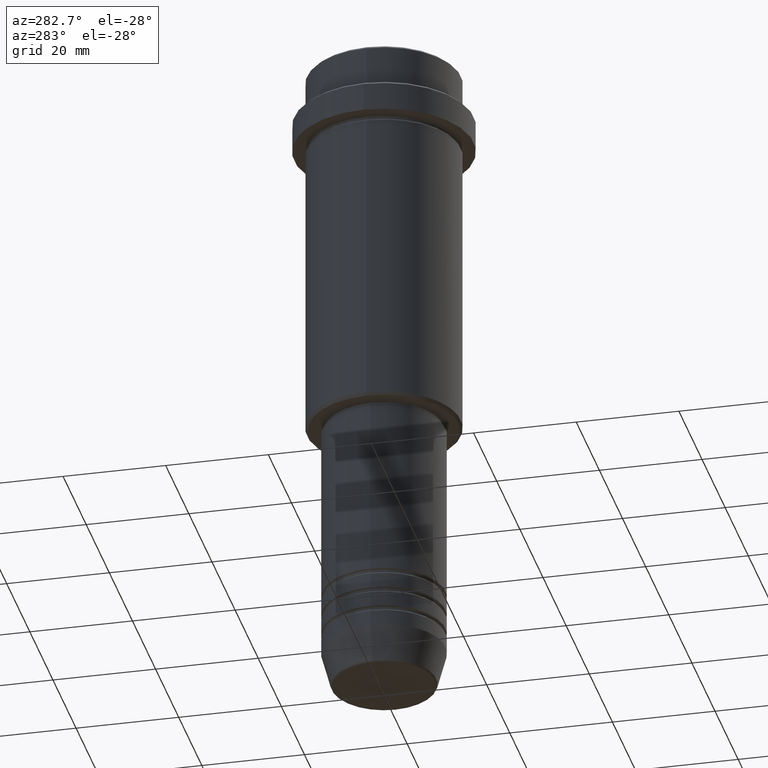
[diagram: clean part render]
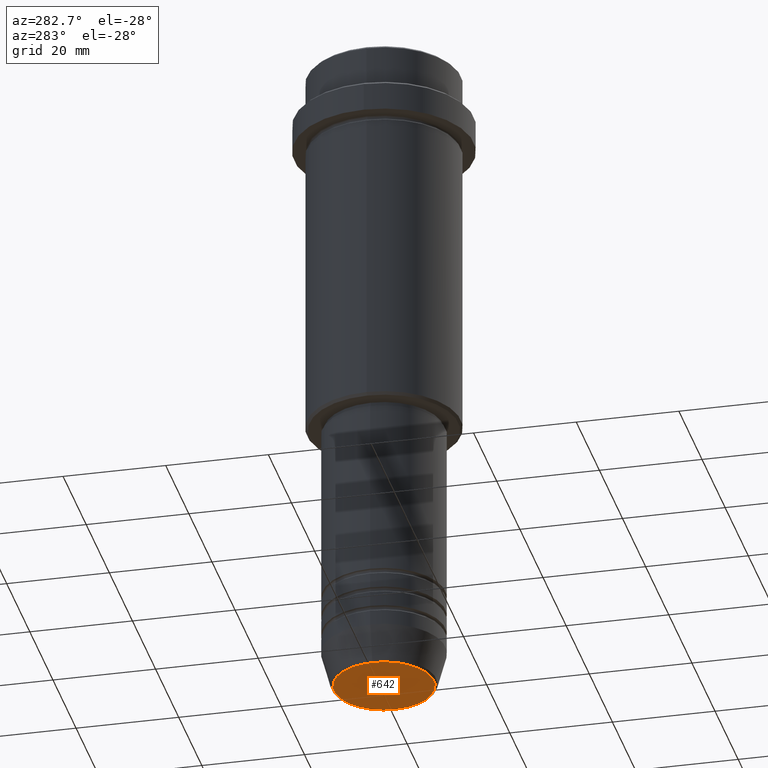
[diagram: same view with one face highlighted and labeled with its STEP entity id]
A machine part, auxiliary view. The second image highlights one B-rep face of the part: STEP entity #642.
In plain terms, the highlighted planar face has unit normal (0, -0, 1).
Its self-contained STEP definition (entity closure, byte-faithful):
#30 = EDGE_CURVE ( 'NONE', #1236, #1231, #1298, .T. ) ;
#128 = CARTESIAN_POINT ( 'NONE',  ( -9.740692158992654726, 1.222463696683474604E-15, -130.0000000000000000 ) ) ;
#143 = CARTESIAN_POINT ( 'NONE',  ( 0.000000000000000000, 0.000000000000000000, -130.0000000000000000 ) ) ;
#205 = PLANE ( 'NONE',  #1414 ) ;
#348 = ORIENTED_EDGE ( 'NONE', *, *, #469, .T. ) ;
#367 = FACE_OUTER_BOUND ( 'NONE', #1263, .T. ) ;
#444 = CARTESIAN_POINT ( 'NONE',  ( 9.740692158992654726, 0.000000000000000000, -130.0000000000000000 ) ) ;
#469 = EDGE_CURVE ( 'NONE', #1231, #1236, #1052, .T. ) ;
#594 = AXIS2_PLACEMENT_3D ( 'NONE', #905, #1338, #799 ) ;
#620 = ORIENTED_EDGE ( 'NONE', *, *, #30, .T. ) ;
#639 = CARTESIAN_POINT ( 'NONE',  ( 0.000000000000000000, 0.000000000000000000, -130.0000000000000000 ) ) ;
#642 = ADVANCED_FACE ( 'NONE', ( #367 ), #205, .F. ) ;
#655 = DIRECTION ( 'NONE',  ( 1.000000000000000000, 0.000000000000000000, 0.000000000000000000 ) ) ;
#799 = DIRECTION ( 'NONE',  ( 1.000000000000000000, 0.000000000000000000, 0.000000000000000000 ) ) ;
#816 = DIRECTION ( 'NONE',  ( 1.000000000000000000, 0.000000000000000000, 0.000000000000000000 ) ) ;
#863 = DIRECTION ( 'NONE',  ( 0.000000000000000000, -0.000000000000000000, 1.000000000000000000 ) ) ;
#902 = DIRECTION ( 'NONE',  ( 0.000000000000000000, 0.000000000000000000, -1.000000000000000000 ) ) ;
#905 = CARTESIAN_POINT ( 'NONE',  ( 0.000000000000000000, 0.000000000000000000, -130.0000000000000000 ) ) ;
#936 = AXIS2_PLACEMENT_3D ( 'NONE', #143, #902, #655 ) ;
#1052 = CIRCLE ( 'NONE', #594, 9.740692158992654726 ) ;
#1231 = VERTEX_POINT ( 'NONE', #444 ) ;
#1236 = VERTEX_POINT ( 'NONE', #128 ) ;
#1263 = EDGE_LOOP ( 'NONE', ( #348, #620 ) ) ;
#1298 = CIRCLE ( 'NONE', #936, 9.740692158992654726 ) ;
#1338 = DIRECTION ( 'NONE',  ( 0.000000000000000000, 0.000000000000000000, -1.000000000000000000 ) ) ;
#1414 = AXIS2_PLACEMENT_3D ( 'NONE', #639, #863, #816 ) ;